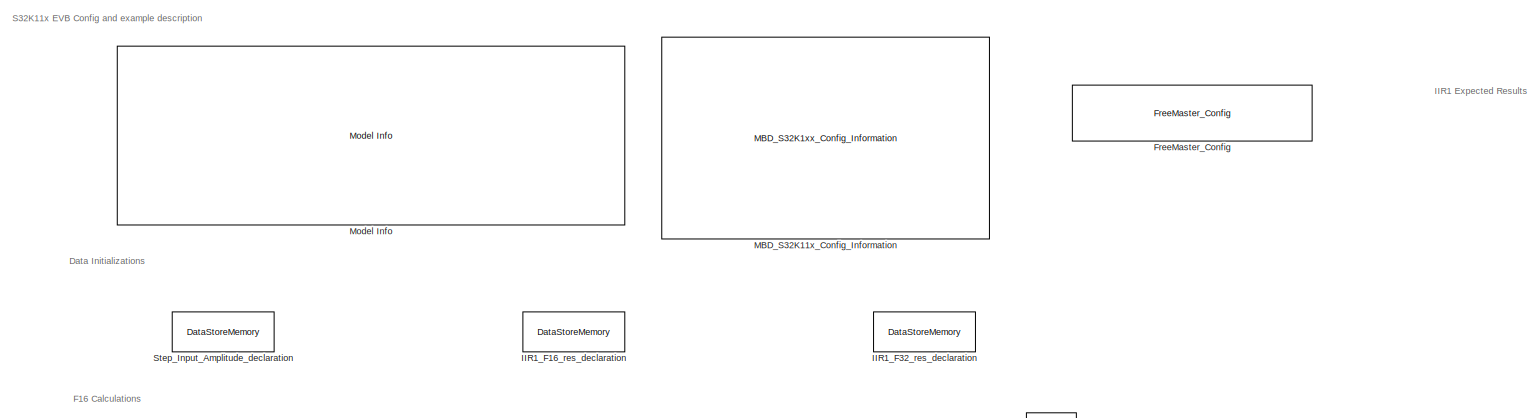
[diagram: root canvas - part 1/3, full width, top band]
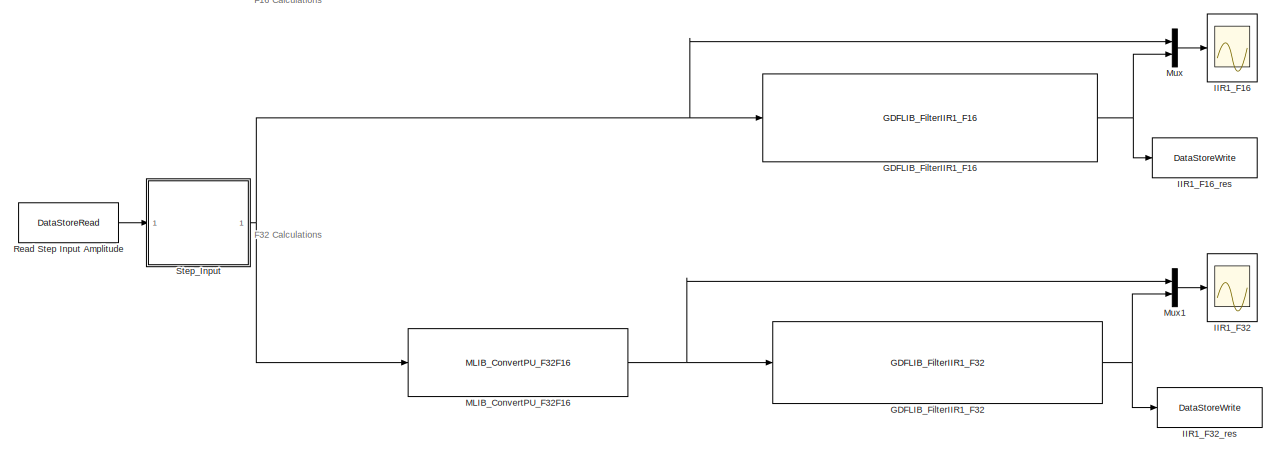
[diagram: root canvas - part 2/3, full width, bottom band]
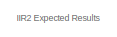
[diagram: root canvas - part 3/3, bottom right region]
MODEL ammclib_gdflib_iir1_s32k11x
KIND model
CONFIG InitFcn = mbd_s32k_consistency_checks(bdroot(gcs));
CONFIG PostLoadFcn = ammclib_gdflib_iir1_s32k11x_params()
BLOCK [Reference] FreeMaster_Config  REF=mbd_s32k1xx_ec_toolbox/Utility Blocks/FreeMaster_Config
  Ports = []
  SID = 710
  SourceBlock = mbd_s32k1xx_ec_toolbox/Utility Blocks/FreeMaster_Config
  SourceType = fm_s32k_config
  baudrate = 19200
  comm_buffer_size = 255
  comm_buffer_size_auto = on
  comm_rqueue_size = 32
  comm_rqueue_size_default = on
  interface = LPUART0
  isr_prio = 3
  max_rec_vars = 8
  max_scope_vars = 8
  mode = Short Interrupt
  rec_buff_size = 1024
  rec_timebase = 0
  rec_timebase_unit = seconds
  rxd = PTB0: [LPUART0_RX | Receive]
  show_adv_opts = on
  txd = PTB1: [LPUART0_TX | Transmit]
  use_recorder = on
  use_scope = on
BLOCK [Reference] GDFLIB_FilterIIR1_F16  REF=ammclib_bam_s32k11x/GDFLIB/bam_f16/GDFLIB_FilterIIR1_F16  (lib defined in mdl_5e542557caf3)
  Ports = [1, 1]
  SID = 702
  SourceBlock = ammclib_bam_s32k11x/GDFLIB/bam_f16/GDFLIB_FilterIIR1_F16
  SourceType = GDFLIB_FilterIIR1
  f16A1 = f16A1
  f16B0 = f16B0
  f16B1 = f16B1
BLOCK [Reference] GDFLIB_FilterIIR1_F32  REF=ammclib_bam_s32k11x/GDFLIB/bam_f32/GDFLIB_FilterIIR1_F32  (lib defined in mdl_5e542557caf3)
  Ports = [1, 1]
  SID = 703
  SourceBlock = ammclib_bam_s32k11x/GDFLIB/bam_f32/GDFLIB_FilterIIR1_F32
  SourceType = GDFLIB_FilterIIR1
  f32A1 = f32A1
  f32B0 = f32B0
  f32B1 = f32B1
BLOCK [Scope] IIR1_F16
  NumInputPorts = 1
  Ports = [1]
  SID = 640
  ScopeSpecificationString = Simulink.scopes.TimeScopeBlockCfg('CurrentConfiguration', extmgr.ConfigurationSet(extmgr.Configuration('Core','General UI',true),extmgr.Configuration('Core','Source UI',true),extmgr.Configuration('Sources','WiredSimulink',true,'DataLoggingVariableName','ScopeData2'),extmgr.Configuration('Visuals','Time Domain',true,'SerializedDisplays',{struct('MinYLimReal','-4095.875','MaxYLimReal','36862.875','Y...<+2273ch>
BLOCK [DataStoreWrite] IIR1_F16_res
  DataStoreName = IIR1_F16
  Ports = [1]
  SID = 581
BLOCK [DataStoreMemory] IIR1_F16_res_declaration
  DataStoreName = IIR1_F16
  OutDataTypeStr = int16
  Priority = 2
  ReadBeforeWriteMsg = warning
  SID = 580
  ShowAdditionalParam = off
  WriteAfterReadMsg = warning
  WriteAfterWriteMsg = warning
BLOCK [Scope] IIR1_F32
  NumInputPorts = 1
  Ports = [1]
  SID = 659
  ScopeSpecificationString = Simulink.scopes.TimeScopeBlockCfg('CurrentConfiguration', extmgr.ConfigurationSet(extmgr.Configuration('Core','General UI',true),extmgr.Configuration('Core','Source UI',true),extmgr.Configuration('Sources','WiredSimulink',true,'DataLoggingVariableName','ScopeData1'),extmgr.Configuration('Visuals','Time Domain',true,'SerializedDisplays',{struct('MinYLimReal','-473057561.375','MaxYLimReal','24386548...<+1727ch>
BLOCK [DataStoreWrite] IIR1_F32_res
  DataStoreName = IIR1_F32
  Ports = [1]
  SID = 661
BLOCK [DataStoreMemory] IIR1_F32_res_declaration
  DataStoreName = IIR1_F32
  OutDataTypeStr = int32
  Priority = 2
  ReadBeforeWriteMsg = warning
  SID = 610
  ShowAdditionalParam = off
  WriteAfterReadMsg = warning
  WriteAfterWriteMsg = warning
BLOCK [Reference] MBD_S32K11x_Config_Information  REF=mbd_s32k1xx_ec_toolbox/MBD_S32K1xx_Config_Information
  ADC_PcrCheckEnDis = on
  AMMCLIB_PcrCheckEnDis = on
  CMP_PcrCheckEnDis = on
  CSEc_PcrCheckEnDis = on
  ConfigParams_PcrCheckEnDis = on
  FM_PcrCheckEnDis = on
  FTM_Dual_Edge_Inputs_PcrCheckEnDis = on
  FTM_Hall_Sensor_Inputs_PcrCheckEnDis = on
  FTM_Input_Edge_Inputs_PcrCheckEnDis = on
  FTM_PWM_PcrCheckEnDis = on
  FTM_Quadrature_Inputs_PcrCheckEnDis = on
  FlexCAN_PcrCheckEnDis = on
  FlexIO_PcrCheckEnDis = on
  GPIO_InputPcrCheckEnDis = on
  GPIO_OutputPcrCheckEnDis = on
  LIN_PcrCheckEnDis = on
  LPI2C_PcrCheckEnDis = on
  LPSPI_PcrCheckEnDis = on
  LPTMR_PcrCheckEnDis = on
  LPUART_PcrCheckEnDis = on
  ModelRef_PcrCheckEnDis = on
  PDB0_PcrCheckEnDis = on
  PIT_PcrCheckEnDis = on
  Ports = []
  Profile_PcrCheckEnDis = on
  RTC_PcrCheckEnDis = on
  SBC_PcrCheckEnDis = on
  SID = 709
  SourceBlock = mbd_s32k1xx_ec_toolbox/MBD_S32K1xx_Config_Information
  SourceType = MBDTBX_EC_S32K
  WDOG_PcrCheckEnDis = on
  config_params = []
  disp_str = Target : S32K144-64KB_SRAM\nPackage : 100-pin\nSystem clock : 80 MHz\nXTAL clock : External 8 MHz\nCompiler : IAR\nTarget Type : FLASH\nDownload Code after build : off\nStep Tick Interrupt Priority : 15
  ds_import_enable = on
  eDMA_PcrCheckEnDis = on
  gcc_target_assemble_opts = -mcpu=cortex-m0plus -mthumb -g
  gcc_target_compile_opts = -mcpu=cortex-m0plus -mthumb -O1 -g -gstrict-dwarf
  gcc_target_default_lcf = on
  gcc_target_link_opts = -mcpu=cortex-m0plus -mthumb
  gcc_target_user_lcf = S32K116_17_flash.ld
  ghs_target_assemble_opts = -mcpu=cortexm0plus -mthumb -fsoft --gnu_asm
  ghs_target_compile_opts = -mcpu=cortexm0plus -mthumb -fsoft -Ogeneral -Wundef -Wimplicit-int -Wshadow -Wtrigraphs --no_commons --gnu_asm -gnu99 -gdwarf-2 -G
  ghs_target_default_lcf = on
  ghs_target_link_opts = -mcpu=cortexm0plus -mthumb -fsoft
  ghs_target_user_lcf = S32K116_17_flash.ld
  iar_target_assemble_opts = --thumb
  iar_target_compile_opts = --thumb -Ol -e --debug --dlib_config normal
  iar_target_default_lcf = on
  iar_target_link_opts = --no_exceptions --vfe --inline
  iar_target_user_lcf = S32K116_17_flash.icf
  mbdt_ver = 0
  mcu_steptick_prio = 3
  mcu_steptick_timer = LPIT Channel 0
  mcu_system_clock_freq = 40
  mcu_target_name = S32K116
  mcu_target_package = 48-LQFP
  mcu_target_sram_size = 17KB
  mcu_xtal_freq = External 40
  pil_download_enable = off
  pil_download_rate = 57600
  pil_opensda_drive = Custom
  pil_opensda_drive_custom = D
  pil_uart_instance = 0
  pil_uart_rx = PTA2: [LPUART0_RX | Receive]
  pil_uart_tx = PTA3: [LPUART0_TX | Transmit]
  rbl_com_port = Custom
  rbl_com_port_custom = COM1
  rbl_download_enable = on
  rbl_download_interface = OpenSDA
  rbl_restart_request = off
  rbl_start_delay = 5000
  target_compiler = GCC
  target_memory = FLASH
BLOCK [Reference] MLIB_ConvertPU_F32F16  REF=ammclib_bam_s32k11x/MLIB/bam_f32/MLIB_ConvertPU_F32F16  (lib defined in mdl_5e542557caf3)
  Ports = [1, 1]
  SID = 637
  SourceBlock = ammclib_bam_s32k11x/MLIB/bam_f32/MLIB_ConvertPU_F32F16
  SourceType = MLIB_ConvertPU_F32
BLOCK [Reference] Model Info  REF=simulink/Model-Wide\nUtilities/Model Info
  DisplayStringWithTags = Model Name: %<ModelName>\n\nDescription: %<Description>
  Frame = off
  HorizontalTextAlignment = Left
  LeftAlignmentValue = 0.02
  MaskDisplayString = Model Name: ammclib_gdflib_iir1_s32k11x\\n\\nDescription: This model tests the AMMCLIB GDFLIB IIR1 blocks\\n\\nValidation:\\n- Run the model in Simulation and check if the results look like the ones shown in the scope capture\\n- Open Freemaster (ammclib_gdflib_iir1_s32k11x.pmp) and compare the HW results against the Simulated ones
  Ports = []
  SID = 524
  SourceBlock = simulink/Model-Wide\nUtilities/Model Info
  SourceProductBaseCode = SL
  SourceProductName = Simulink
  SourceType = CMBlock
BLOCK [Mux] Mux
  DisplayOption = bar
  Inputs = 2
  Ports = [2, 1]
  SID = 639
BLOCK [Mux] Mux1
  DisplayOption = bar
  Inputs = 2
  Ports = [2, 1]
  SID = 660
BLOCK [DataStoreRead] Read Step Input Amplitude
  DataStoreName = Step_Input_Amplitude
  Ports = [0, 1]
  SID = 652
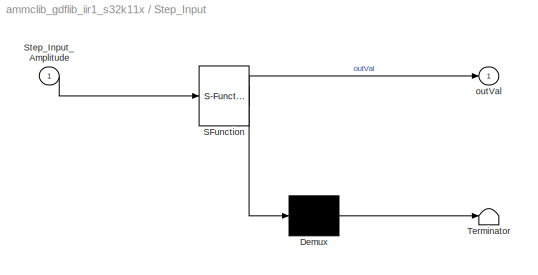
BLOCK [SubSystem] Step_Input
  ErrorFcn = Stateflow.Translate.translate
  PermitHierarchicalResolution = ExplicitOnly
  Ports = [1, 1]
  RequestExecContextInheritance = off
  SFBlockType = Chart
  SID = 635
  TreatAsAtomicUnit = on
  Variant = off
BLOCK [Demux] Step_Input/ Demux 
  Outputs = 1
  Ports = [1, 1]
  SID = 635::35
BLOCK [S-Function] Step_Input/ SFunction 
  EnableBusSupport = off
  FunctionName = sf_sfun
  PortCounts = [1 2]
  Ports = [1, 2]
  SFcnIsStateOwnerBlock = off
  SFunctionDeploymentMode = off
  SID = 635::34
  Tag = Stateflow S-Function ammclib_gdflib_iir1_s32k11x 1
BLOCK [Terminator] Step_Input/ Terminator 
  SID = 635::36
BLOCK [Inport] Step_Input/Step_Input_Amplitude
  IconDisplay = Port number
  SID = 635::30
BLOCK [Outport] Step_Input/outVal
  IconDisplay = Port number
  SID = 635::5
BLOCK [DataStoreMemory] Step_Input_Amplitude_declaration
  DataStoreName = Step_Input_Amplitude
  InitialValue = 32767
  OutDataTypeStr = int16
  OutMax = 32767
  OutMin = -32768
  Priority = 1
  SID = 582
  ShowAdditionalParam = off
  WriteAfterReadMsg = warning
  WriteAfterWriteMsg = warning
ANNOTATION (root): \n \n IIR1 Expected Results \n
ANNOTATION (root): \n \n IIR2 Expected Results \n \n
ANNOTATION (root): Data Initializations
ANNOTATION (root): F16 Calculations
ANNOTATION (root): F32 Calculations
ANNOTATION (root): S32K11x EVB Config and example description
NET GDFLIB_FilterIIR1_F16:1 -> IIR1_F16_res:1, Mux:2
NET GDFLIB_FilterIIR1_F32:1 -> IIR1_F32_res:1, Mux1:2
NET MLIB_ConvertPU_F32F16:1 -> GDFLIB_FilterIIR1_F32:1, Mux1:1
LINE Mux1:1 -> IIR1_F32:1
LINE Mux:1 -> IIR1_F16:1
LINE Read Step Input Amplitude:1 -> Step_Input:1
LINE Step_Input/ Demux :1 -> Step_Input/ Terminator :1
LINE Step_Input/ SFunction :1 -> Step_Input/ Demux :1
LINE Step_Input/ SFunction :2 -> Step_Input/outVal:1
LINE Step_Input/Step_Input_Amplitude:1 -> Step_Input/ SFunction :1
NET Step_Input:1 -> GDFLIB_FilterIIR1_F16:1, MLIB_ConvertPU_F32F16:1, Mux:1
note: NET lines group one-source signal fan-out (src -> all destinations, sorted); 1:1 wires keep LINE
CHART Step_Input states=2 transitions=3
  STATE_LABEL 'A\\ndu:\\noutVal = 0;\\ncntr=cntr+1;'
  STATE_LABEL 'A1\\ndu:\\noutVal = Step_Input_Amplitude;\\ncntr=cntr-1;'
